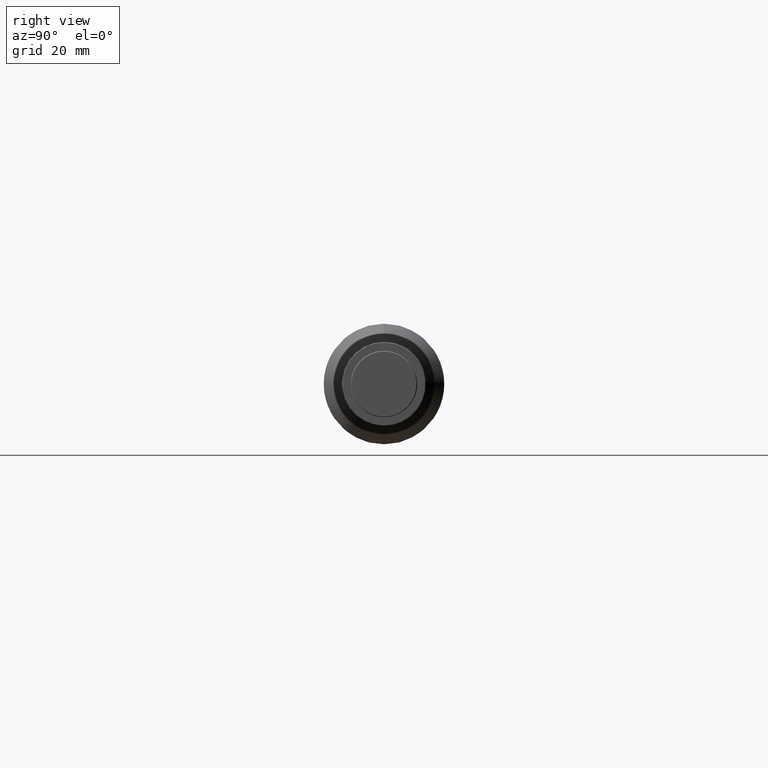
[diagram: clean part render]
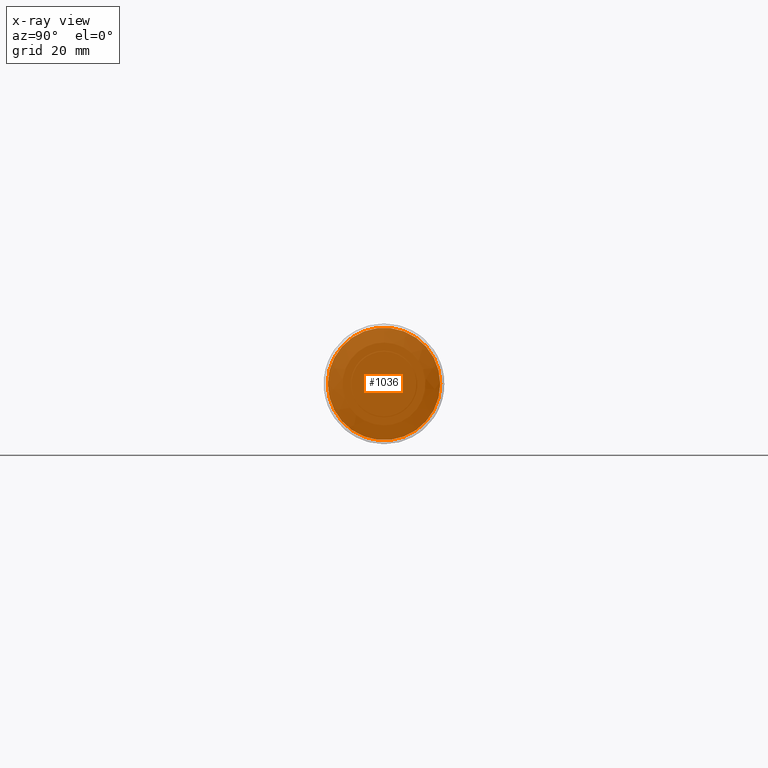
[diagram: x-ray — body ghosted, one internal face saturated and labeled with its STEP entity id]
A machine part, right view, then the same camera in x-ray: the body is ghosted and one INTERNAL B-rep face — a face not visible from any outside direction — is saturated and labeled: STEP entity #1036.
In plain terms, the highlighted planar face has unit normal (-1, -0, -0).
Its self-contained STEP definition (entity closure, byte-faithful):
#97 = ORIENTED_EDGE ( 'NONE', *, *, #268, .T. ) ;
#268 = EDGE_CURVE ( 'NONE', #1081, #1081, #2036, .T. ) ;
#272 = DIRECTION ( 'NONE',  ( -1.000000000000000000, -2.465190328815661892E-32, -2.736911063134408342E-48 ) ) ;
#283 = DIRECTION ( 'NONE',  ( -2.465190328815661892E-32, 1.000000000000000000, 1.318609258053555115E-16 ) ) ;
#515 = DIRECTION ( 'NONE',  ( 0.000000000000000000, 1.000000000000000000, 1.318609258053554868E-16 ) ) ;
#608 = PLANE ( 'NONE',  #690 ) ;
#690 = AXIS2_PLACEMENT_3D ( 'NONE', #882, #272, #283 ) ;
#882 = CARTESIAN_POINT ( 'NONE',  ( 8.800000000000007816, 56.17486957814339377, 31.20951493132240273 ) ) ;
#1023 = DIRECTION ( 'NONE',  ( 1.000000000000000000, 2.465190328815661892E-32, 2.736911063134408342E-48 ) ) ;
#1027 = AXIS2_PLACEMENT_3D ( 'NONE', #1949, #1023, #515 ) ;
#1036 = ADVANCED_FACE ( 'NONE', ( #1859 ), #608, .F. ) ;
#1069 = CARTESIAN_POINT ( 'NONE',  ( 8.800000000000007816, 21.45211006975307555, 2.828695094276029697E-15 ) ) ;
#1081 = VERTEX_POINT ( 'NONE', #1069 ) ;
#1663 = EDGE_LOOP ( 'NONE', ( #97 ) ) ;
#1859 = FACE_OUTER_BOUND ( 'NONE', #1663, .T. ) ;
#1949 = CARTESIAN_POINT ( 'NONE',  ( 8.800000000000007816, 0.000000000000000000, 0.000000000000000000 ) ) ;
#2036 = CIRCLE ( 'NONE', #1027, 21.45211006975307555 ) ;